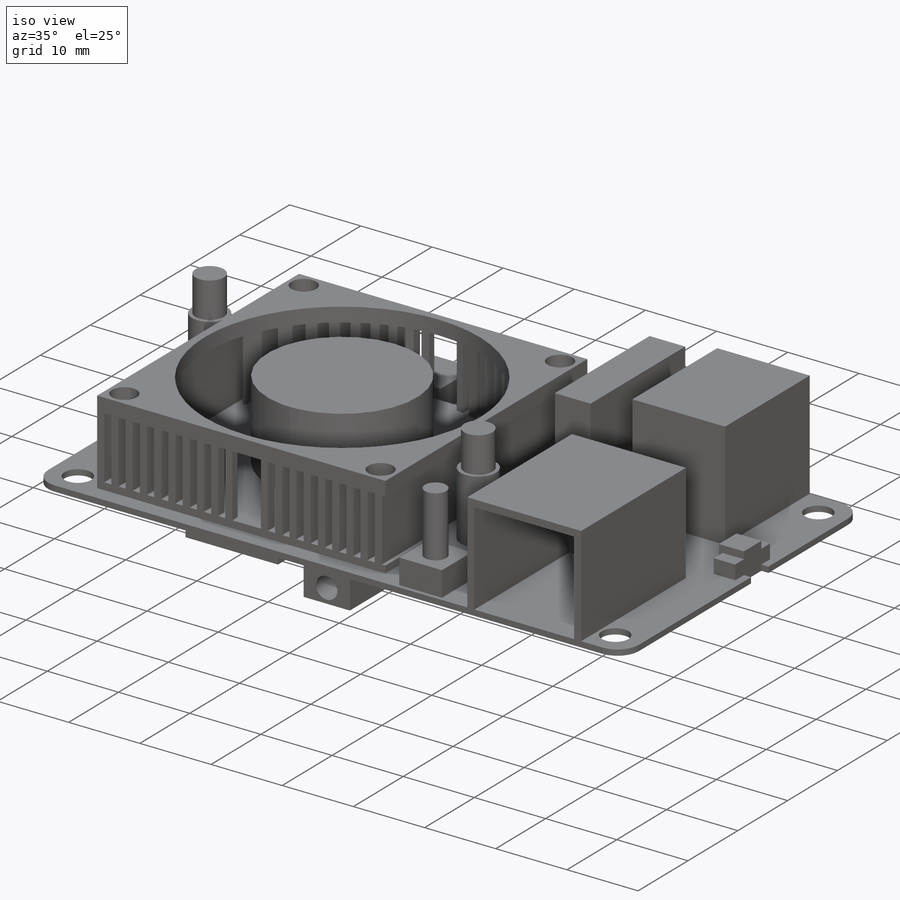
[diagram: iso view]
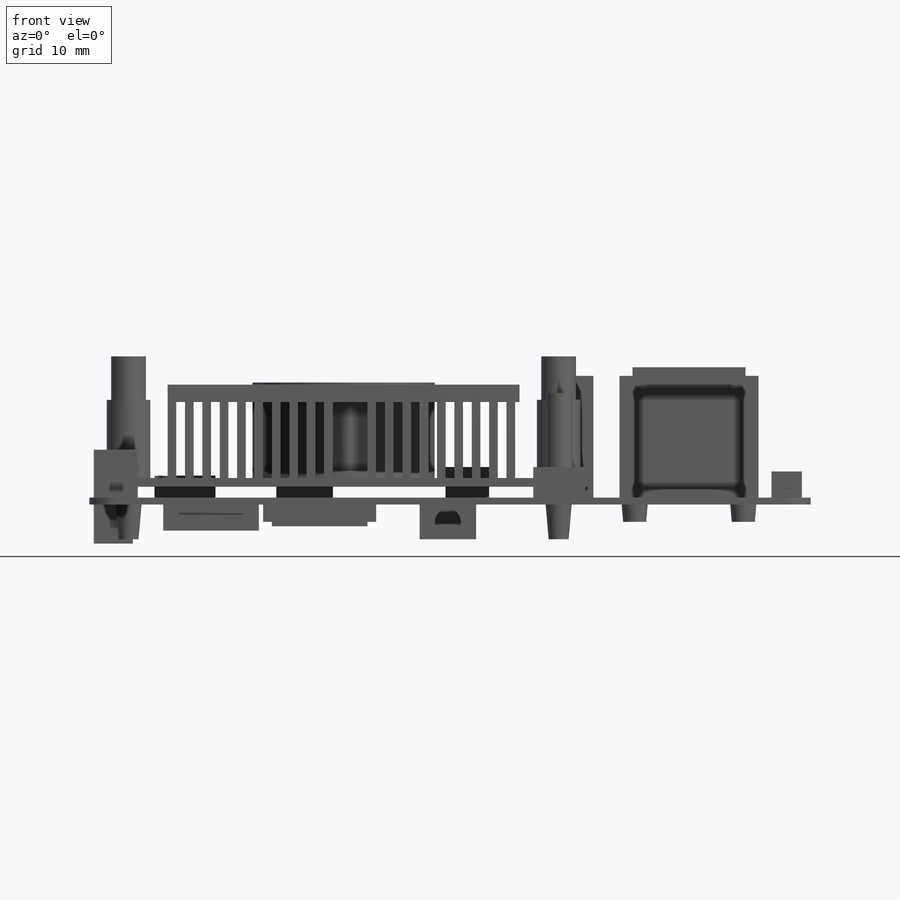
[diagram: front view]
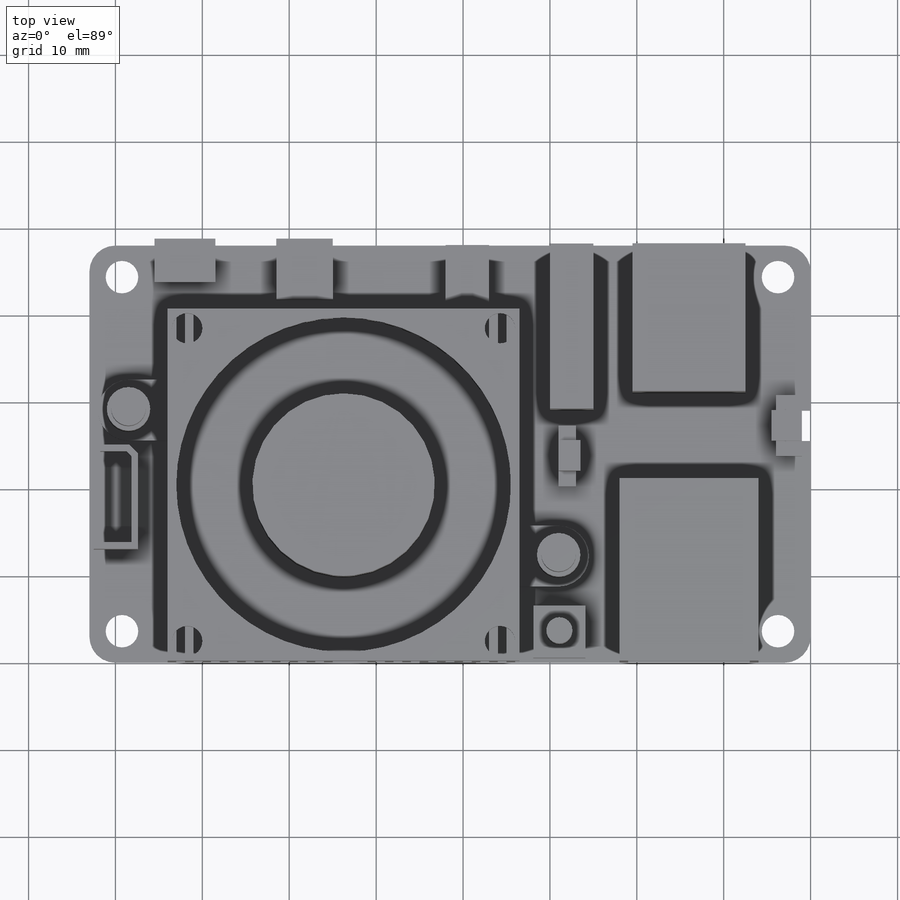
[diagram: top view]
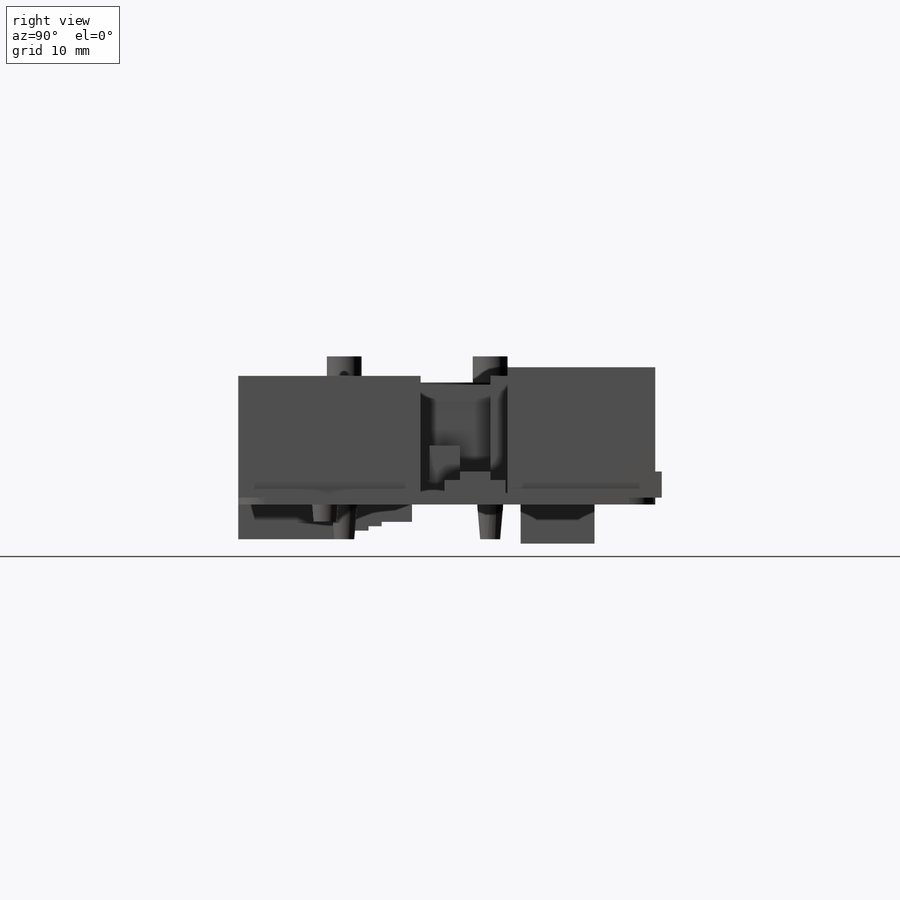
[diagram: right view]
SOLIDWORKS PART (.sldprt)
format: sldprt  version: not decoded by parser v0  size: 1,520,128 bytes
history: native  units: mm
features: sketch x32, extrude x27, cut_extrude x5, material x1, fillet x1, chamfer x1, plane x1 (+13 scaffold rows collapsed; 1 parser-record rows omitted)
feature tree (82):
  scaffold x13  (default folders/planes/origin — collapsed)
  material  "Material <not specified>"
  parser-record x1  (decoder bookkeeping rows leaked as tree rows — omitted from the tree; the rows remain in map.json)
  sketch  "Sketch1"  dims[D1=20.375mm D2=20.375mm D3=3.75mm D4=3.75mm D5=83.0mm D6=48.0mm]
  extrude  "Boss-Extrude1"  Depth=0.8mm
  fillet  "Fillet1"  Radius=3mm
  sketch  "Sketch2"  dims[c1.D1=~13.667169mm c1.D3=~0.624718mm c1.D5=~4.380453mm c1.D17=~4.50916mm c1.D18=~1.264511mm c1.D19=~1.474296mm c1.D35=~4.233849mm c2.D1=9.0mm c2.D2=0.0mm c2.D3=2.25mm c2.D4=2.25mm c2.D5=6.0mm c2.D6=16.0mm c2.D7=21.0mm c2.D8=13.0mm c2.D9=5.0mm c2.D10=4.5mm c2.D11=7.5mm c2.D12=0.5mm c2.D13=13.0mm c2.D14=12.0mm c2.D15=4.0mm c2.D16=4.5mm c2.D17=4.5mm c2.D18=0.5mm c2.D19=6.5mm c2.D20=7.0mm c2.D21=0.75mm c2.D22=0.75mm c2.D23=1.0mm c2.D24=3.5mm c2.D25=19.0mm c2.D26=17.0mm c2.D27=19.0mm c2.D28=7.0mm c2.D29=5.0mm c2.D30=13.0mm c2.D31=7.0mm c2.D32=7.5mm c2.D33=7.0mm c2.D34=5.0mm c2.D35=1.75mm c2.D36=2.0mm c2.D37=3.5mm c2.D38=1.75mm c2.D39=0.5mm c2.D40=2.0mm]
  extrude  "Boss-Extrude2"  Depth=2mm
  extrude  "Boss-Extrude3"  [1 undecoded]
  sketch  "Sketch2<3>"  dims[D1=15.0mm]
  extrude  "Boss-Extrude4"  [1 undecoded]
  sketch  "Sketch2<4>"  dims[D1=14.0mm]
  extrude  "Boss-Extrude5"  [1 undecoded]
  sketch  "Sketch2<5>"  dims[D1=14.0mm]
  extrude  "Boss-Extrude6"  [1 undecoded]
  sketch  "Sketch2<6>"  dims[D1=12.0mm]
  extrude  "Boss-Extrude7"  [1 undecoded]
  sketch  "Sketch2<7>"  dims[D1=3.5mm]
  extrude  "Boss-Extrude8"  [1 undecoded]
  sketch  "Sketch2<8>"  dims[D1=2.5mm]
  extrude  "Boss-Extrude9"  [1 undecoded]
  sketch  "Sketch2<9>"  dims[D1=3.0mm]
  extrude  "Boss-Extrude10"  [1 undecoded]
  sketch  "Sketch2<10>"  dims[D1=3.5mm]
  extrude  "Boss-Extrude11"  [1 undecoded]
  sketch  "Sketch2<11>"  dims[D1=1.0mm D19=1.25mm]
  extrude  "Boss-Extrude12"  [1 undecoded]
  sketch  "Sketch2<12>"  dims[D1=9.0mm]
  extrude  "Boss-Extrude14"  [1 undecoded]
  sketch  "Sketch2<13>"  dims[D1=14.0mm D19=2.25mm]
  extrude  "Boss-Extrude15"  [1 undecoded]
  sketch  "Sketch2<14>"  dims[D1=3.0mm]
  cut_extrude  "Cut-Extrude1"  [1 undecoded]
  sketch  "Sketch2<15>"  dims[D1=3.0mm]
  extrude  "Boss-Extrude16"  [1 undecoded]
  sketch  "Sketch2<16>"  dims[D1=2.0mm]
  extrude  "Boss-Extrude17"  [1 undecoded]
  sketch  "Sketch2<17>"  dims[D1=2.0mm]
  extrude  "Boss-Extrude18"  [1 undecoded]
  sketch  "Sketch2<18>"  dims[D1=6.0mm]
  extrude  "Boss-Extrude19"  [1 undecoded]
  sketch  "Sketch2<19>"  dims[D1=5.5mm]
  chamfer  "Chamfer1"  Distance=1mm Angle=45deg
  sketch  "Sketch3"  dims[c1.D2=7.0mm c1.D1=0.0mm c2.D2=41.0]
  extrude  "Boss-Extrude23"  Depth=8.75mm
  extrude  "Boss-Extrude24"  [1 undecoded]
  sketch  "Sketch2<20>"  dims[D1=11.0mm]
  sketch  "Sketch4"  dims[c1.D1=~2.100843mm c1.D5=~1.050421mm c2.D1=8.5mm c2.D2=0.5mm c2.D3=4.5mm c2.D4=7.0mm c2.D5=20.0mm c2.D6=1.0mm c2.D7=1.0mm c2.D8=13.0mm c2.D9=2.0mm c2.D10=1.5mm c2.D11=3.5mm c2.D12=13.0mm c2.D13=0.5mm c2.D14=11.0mm c2.D15=5.0mm c2.D16=10.0mm c2.D17=5.0mm c2.D18=6.5mm c2.D19=13.0mm c2.D20=1.75mm c2.D21=1.75mm c2.D22=10.0mm c2.D23=10.0mm]
  extrude  "Boss-Extrude25"  Depth=4.5mm
  extrude  "Boss-Extrude26"  [1 undecoded]
  sketch  "Sketch4<3>"  dims[D1=3.0mm]
  extrude  "Boss-Extrude27"  [1 undecoded]
  sketch  "Sketch4<4>"  dims[D1=2.5mm]
  extrude  "Boss-Extrude28"  [1 undecoded]
  sketch  "Sketch4<5>"  dims[D1=2.0mm]
  extrude  "Boss-Extrude29"  [1 undecoded]
  sketch  "Sketch4<6>"  dims[D1=4.0mm]
  extrude  "Boss-Extrude30"  [1 undecoded]
  sketch  "Sketch4<7>"  dims[D1=4.0mm]
  extrude  "Boss-Extrude31"  [1 undecoded]
  sketch  "Sketch4<8>"  dims[D1=2.0mm]
  sketch  "Sketch5"  dims[D1=1.0mm]
  cut_extrude  "Cut-Extrude2"  Depth=2mm
  sketch  "Sketch6"  dims[D2=2.0mm D1=1.0mm D3=0.5mm]
  cut_extrude  "Cut-Extrude3"  Depth=2mm
  sketch  "Sketch7"  dims[D1=3.0mm]
  cut_extrude  "Cut-Extrude4"  Depth=2mm
  sketch  "Sketch8"  dims[D1=0.75mm]
  cut_extrude  "Cut-Extrude5"  [1 undecoded]
  plane  "central_plane"
decode coverage: 41 of 66 modeling features carry decoded parameters
note: ~ marks probable driven/reference dimensions
note: 25 parameter values undecoded
summary: no parameter record found for 25 features
note: suppression state not decoded; provenance and decode notes live in map.json
